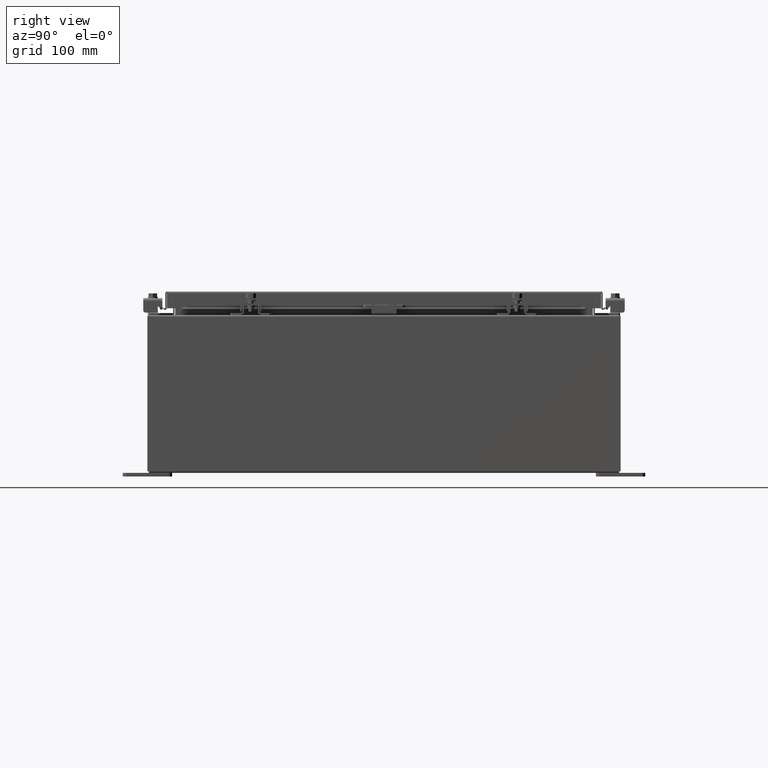
[diagram: clean part render]
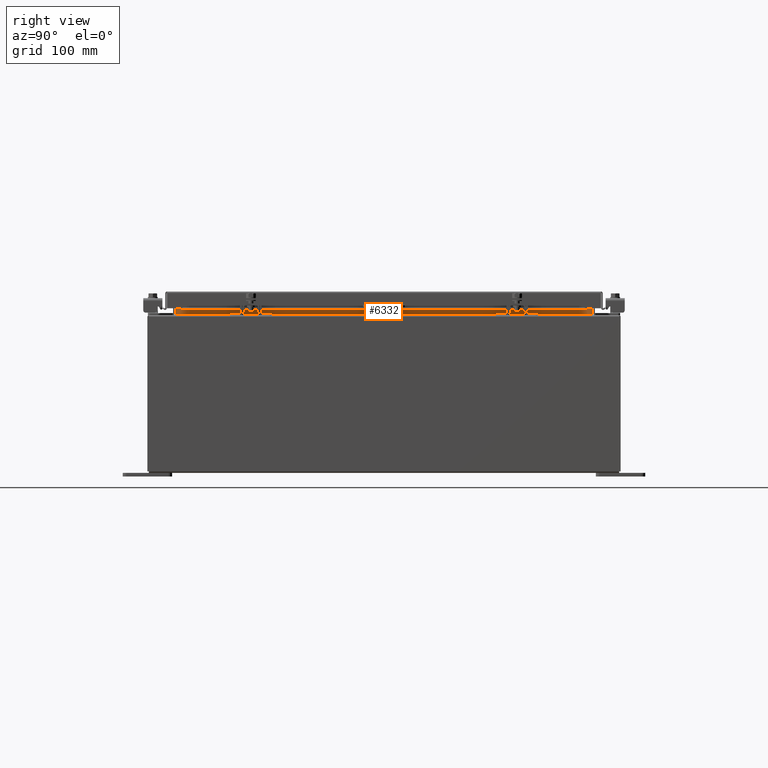
[diagram: same view with one face highlighted and labeled with its STEP entity id]
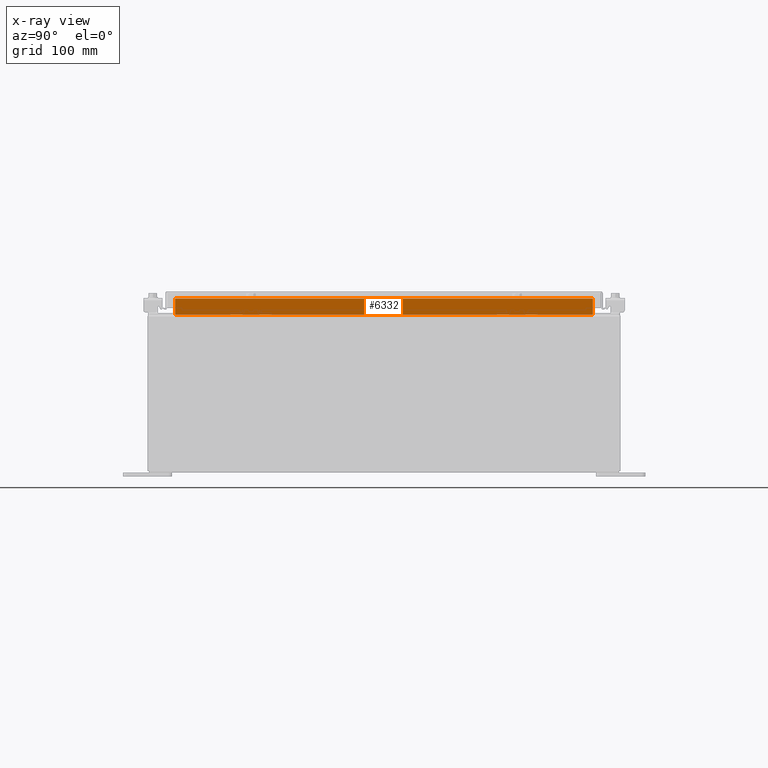
[diagram: x-ray of the same camera — body ghosted, the highlighted face saturated]
A machine part, right view. The second image highlights one B-rep face of the part: STEP entity #6332.
The next image is the same camera in x-ray: the body ghosted, the highlighted face saturated — about 0% of this face is hidden behind the body in this view.
In plain terms, the highlighted planar face has unit normal (1, -0, -0).
Its self-contained STEP definition (entity closure, byte-faithful):
#163 = VERTEX_POINT ( 'NONE', #22324 ) ;
#797 = VERTEX_POINT ( 'NONE', #27942 ) ;
#2724 = DIRECTION ( 'NONE',  ( 1.000000000000000000, -1.218149977913431200E-031, -2.361913319930196000E-015 ) ) ;
#2985 = ORIENTED_EDGE ( 'NONE', *, *, #24373, .F. ) ;
#3747 = CARTESIAN_POINT ( 'NONE',  ( 10.69970000000003200, 10.59374999999999600, 8.762900000000009000 ) ) ;
#6332 = ADVANCED_FACE ( 'NONE', ( #9373 ), #23738, .T. ) ;
#8760 = VERTEX_POINT ( 'NONE', #3747 ) ;
#9373 = FACE_OUTER_BOUND ( 'NONE', #31406, .T. ) ;
#12815 = LINE ( 'NONE', #30814, #32205 ) ;
#13833 = LINE ( 'NONE', #14093, #26333 ) ;
#14093 = CARTESIAN_POINT ( 'NONE',  ( 10.69970000000003200, -10.59375000000000000, 8.762900000000009000 ) ) ;
#14429 = DIRECTION ( 'NONE',  ( -2.361913319930196000E-015, 0.0000000000000000000, -1.000000000000000000 ) ) ;
#14551 = DIRECTION ( 'NONE',  ( 1.031494227696241200E-016, -1.000000000000000000, 3.094482683088723800E-016 ) ) ;
#15475 = LINE ( 'NONE', #32239, #27984 ) ;
#15725 = DIRECTION ( 'NONE',  ( 2.361913319930198800E-015, -0.0000000000000000000, 1.000000000000000000 ) ) ;
#15911 = VERTEX_POINT ( 'NONE', #27860 ) ;
#16600 = DIRECTION ( 'NONE',  ( 0.0000000000000000000, 1.000000000000000000, 0.0000000000000000000 ) ) ;
#19546 = ORIENTED_EDGE ( 'NONE', *, *, #21802, .F. ) ;
#20378 = EDGE_CURVE ( 'NONE', #8760, #797, #27099, .T. ) ;
#21455 = CARTESIAN_POINT ( 'NONE',  ( 10.69970000000002800, 10.59374999999999600, 7.925300000000008900 ) ) ;
#21802 = EDGE_CURVE ( 'NONE', #15911, #163, #12815, .T. ) ;
#22324 = CARTESIAN_POINT ( 'NONE',  ( 10.69970000000003000, -10.59375000000000200, 8.762900000000009000 ) ) ;
#23738 = PLANE ( 'NONE',  #31587 ) ;
#24373 = EDGE_CURVE ( 'NONE', #163, #8760, #13833, .T. ) ;
#26333 = VECTOR ( 'NONE', #16600, 39.37007874015748100 ) ;
#26736 = ORIENTED_EDGE ( 'NONE', *, *, #29911, .F. ) ;
#26977 = CARTESIAN_POINT ( 'NONE',  ( 10.69970000000000900, 0.0000000000000000000, -2.526959394139443400E-014 ) ) ;
#27099 = LINE ( 'NONE', #21455, #27895 ) ;
#27860 = CARTESIAN_POINT ( 'NONE',  ( 10.69970000000002800, -10.59375000000000200, 7.938300000000011500 ) ) ;
#27895 = VECTOR ( 'NONE', #28955, 39.37007874015748100 ) ;
#27942 = CARTESIAN_POINT ( 'NONE',  ( 10.69970000000002800, 10.59374999999998400, 7.938300000000011500 ) ) ;
#27984 = VECTOR ( 'NONE', #14551, 39.37007874015748100 ) ;
#28552 = ORIENTED_EDGE ( 'NONE', *, *, #20378, .F. ) ;
#28955 = DIRECTION ( 'NONE',  ( -2.361913319930196000E-015, -0.0000000000000000000, -1.000000000000000000 ) ) ;
#29911 = EDGE_CURVE ( 'NONE', #797, #15911, #15475, .T. ) ;
#30814 = CARTESIAN_POINT ( 'NONE',  ( 10.69970000000003000, -10.59375000000000200, 8.850600000000008900 ) ) ;
#31406 = EDGE_LOOP ( 'NONE', ( #28552, #2985, #19546, #26736 ) ) ;
#31587 = AXIS2_PLACEMENT_3D ( 'NONE', #26977, #2724, #14429 ) ;
#32205 = VECTOR ( 'NONE', #15725, 39.37007874015748100 ) ;
#32239 = CARTESIAN_POINT ( 'NONE',  ( 10.69970000000002800, 10.59374999999999600, 7.938300000000008800 ) ) ;